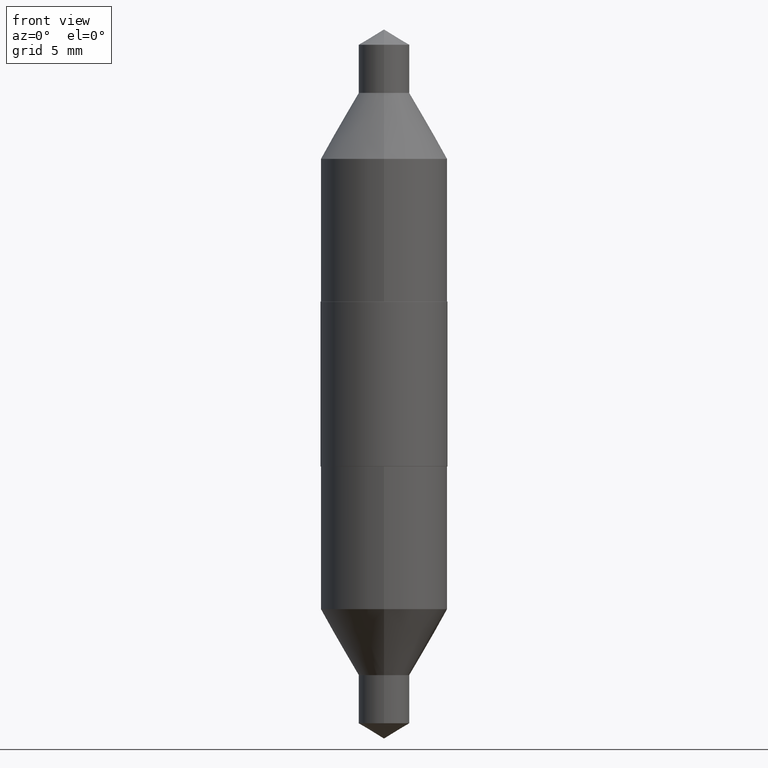
[diagram: clean part render]
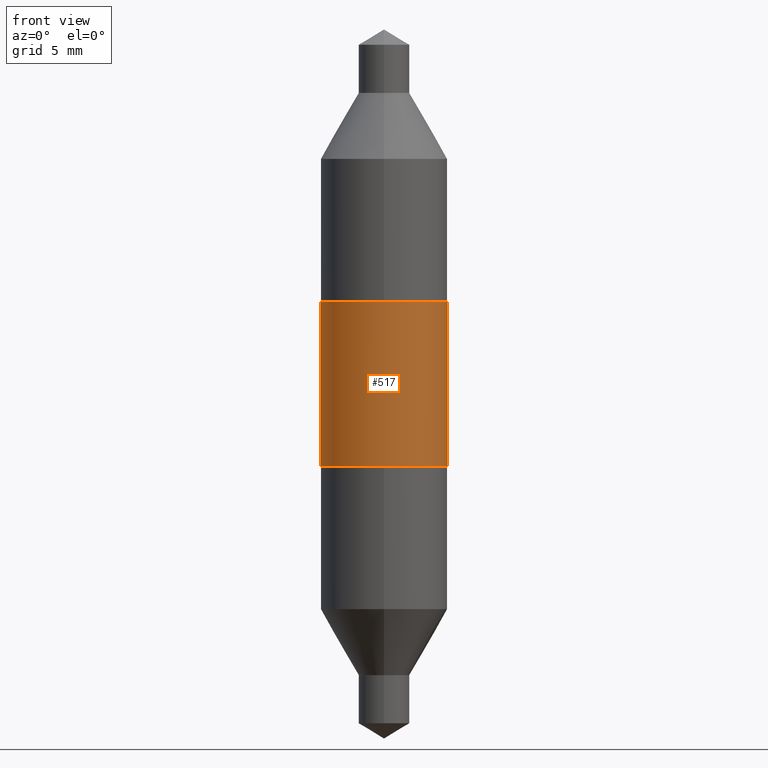
[diagram: same view with one face highlighted and labeled with its STEP entity id]
A machine part, front view. The second image highlights one B-rep face of the part: STEP entity #517.
In plain terms, the highlighted cylindrical surface (partial cylindrical patch) has radius 5 mm, axis along (-0, 0, 1).
Its self-contained STEP definition (entity closure, byte-faithful):
#57 = VERTEX_POINT ( 'NONE', #433 ) ;
#64 = EDGE_CURVE ( 'NONE', #65, #57, #280, .T. ) ;
#65 = VERTEX_POINT ( 'NONE', #483 ) ;
#68 = EDGE_CURVE ( 'NONE', #65, #332, #419, .T. ) ;
#87 = CARTESIAN_POINT ( 'NONE',  ( 0.1968500000000000527, -2.266669685176966220E-15, -0.2555000000000003380 ) ) ;
#118 = ORIENTED_EDGE ( 'NONE', *, *, #651, .F. ) ;
#131 = CARTESIAN_POINT ( 'NONE',  ( 0.1968500000000000527, -1.374596203102542003E-15, 9.598753983154302260E-30 ) ) ;
#137 = EDGE_CURVE ( 'NONE', #332, #380, #193, .T. ) ;
#140 = EDGE_LOOP ( 'NONE', ( #498, #475, #394, #118 ) ) ;
#149 = CARTESIAN_POINT ( 'NONE',  ( -0.1968500000000000527, 1.398703375343757590E-15, -9.682923725166785079E-30 ) ) ;
#150 = CARTESIAN_POINT ( 'NONE',  ( 0.1968500000000000527, -4.825227210281171943E-16, 0.2555000000000003380 ) ) ;
#193 = LINE ( 'NONE', #131, #240 ) ;
#204 = CARTESIAN_POINT ( 'NONE',  ( 6.248172799803031437E-30, -8.920734820744248085E-16, -0.2555000000000003380 ) ) ;
#240 = VECTOR ( 'NONE', #359, 39.37007874015748143 ) ;
#264 = DIRECTION ( 'NONE',  ( 1.000000000000000000, -6.982962677686266711E-15, 0.000000000000000000 ) ) ;
#280 = LINE ( 'NONE', #149, #346 ) ;
#324 = CARTESIAN_POINT ( 'NONE',  ( -6.248172799803031437E-30, 8.920734820744248085E-16, 0.2555000000000003380 ) ) ;
#326 = CARTESIAN_POINT ( 'NONE',  ( 0.000000000000000000, 0.000000000000000000, 0.000000000000000000 ) ) ;
#329 = DIRECTION ( 'NONE',  ( 1.000000000000000000, -6.982962677686266711E-15, 0.000000000000000000 ) ) ;
#330 = CYLINDRICAL_SURFACE ( 'NONE', #357, 0.1968500000000000527 ) ;
#332 = VERTEX_POINT ( 'NONE', #87 ) ;
#334 = DIRECTION ( 'NONE',  ( -2.445468806185136597E-29, 3.491481338843145583E-15, 1.000000000000000000 ) ) ;
#346 = VECTOR ( 'NONE', #696, 39.37007874015748143 ) ;
#357 = AXIS2_PLACEMENT_3D ( 'NONE', #326, #334, #546 ) ;
#359 = DIRECTION ( 'NONE',  ( -2.445468806185136877E-29, 3.491481338843145188E-15, 1.000000000000000000 ) ) ;
#380 = VERTEX_POINT ( 'NONE', #150 ) ;
#394 = ORIENTED_EDGE ( 'NONE', *, *, #137, .T. ) ;
#419 = CIRCLE ( 'NONE', #601, 0.1968500000000000527 ) ;
#423 = DIRECTION ( 'NONE',  ( -2.445468806185136597E-29, 3.491481338843145583E-15, 1.000000000000000000 ) ) ;
#433 = CARTESIAN_POINT ( 'NONE',  ( -0.1968500000000000527, 1.398703375343757590E-15, 0.2555000000000003380 ) ) ;
#475 = ORIENTED_EDGE ( 'NONE', *, *, #68, .T. ) ;
#483 = CARTESIAN_POINT ( 'NONE',  ( -0.1968500000000000527, 5.066298932693327820E-16, -0.2555000000000003380 ) ) ;
#498 = ORIENTED_EDGE ( 'NONE', *, *, #64, .F. ) ;
#517 = ADVANCED_FACE ( 'NONE', ( #535 ), #330, .T. ) ;
#535 = FACE_OUTER_BOUND ( 'NONE', #140, .T. ) ;
#546 = DIRECTION ( 'NONE',  ( 1.000000000000000000, -6.982962677686266711E-15, 4.876176775795935793E-29 ) ) ;
#601 = AXIS2_PLACEMENT_3D ( 'NONE', #204, #423, #329 ) ;
#617 = AXIS2_PLACEMENT_3D ( 'NONE', #324, #699, #264 ) ;
#636 = CIRCLE ( 'NONE', #617, 0.1968500000000000527 ) ;
#651 = EDGE_CURVE ( 'NONE', #57, #380, #636, .T. ) ;
#696 = DIRECTION ( 'NONE',  ( -2.445468806185136877E-29, 3.491481338843145188E-15, 1.000000000000000000 ) ) ;
#699 = DIRECTION ( 'NONE',  ( -2.445468806185136597E-29, 3.491481338843145583E-15, 1.000000000000000000 ) ) ;